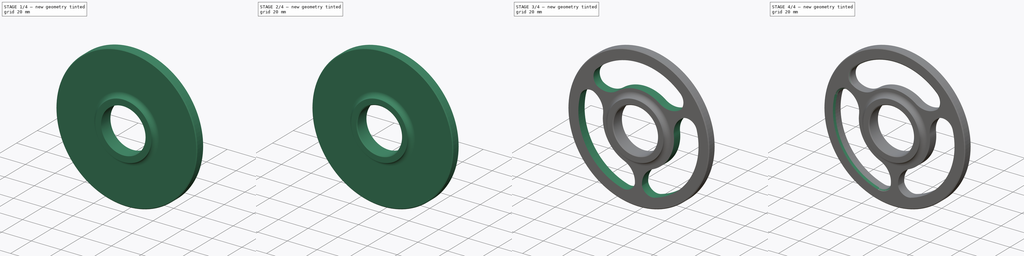
[diagram: build sequence overview — one tinted view per stage of 4, left to right]
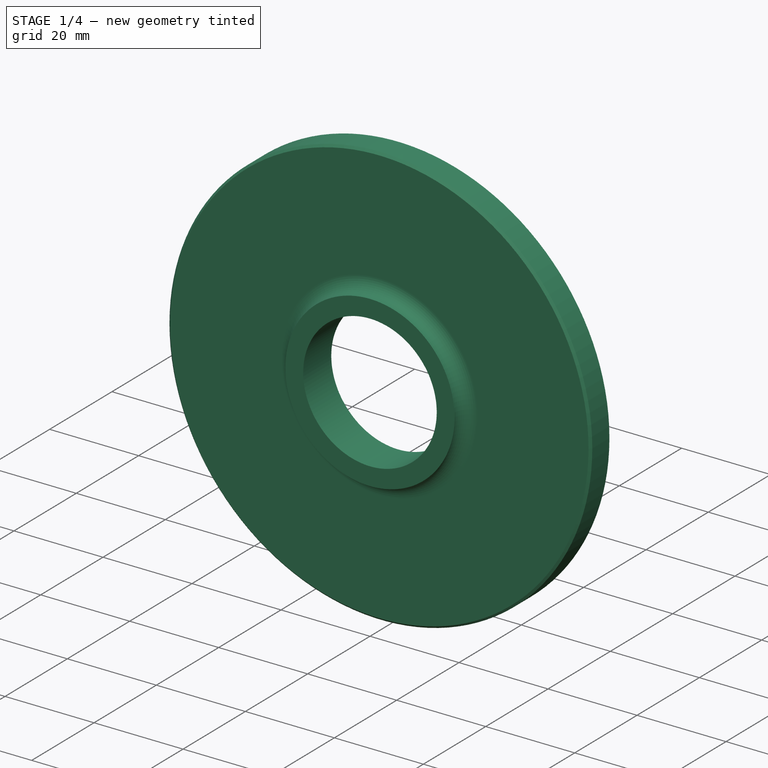
[diagram: stage 1 of 4 — iso view after this stage's code; geometry added in this stage tinted green]
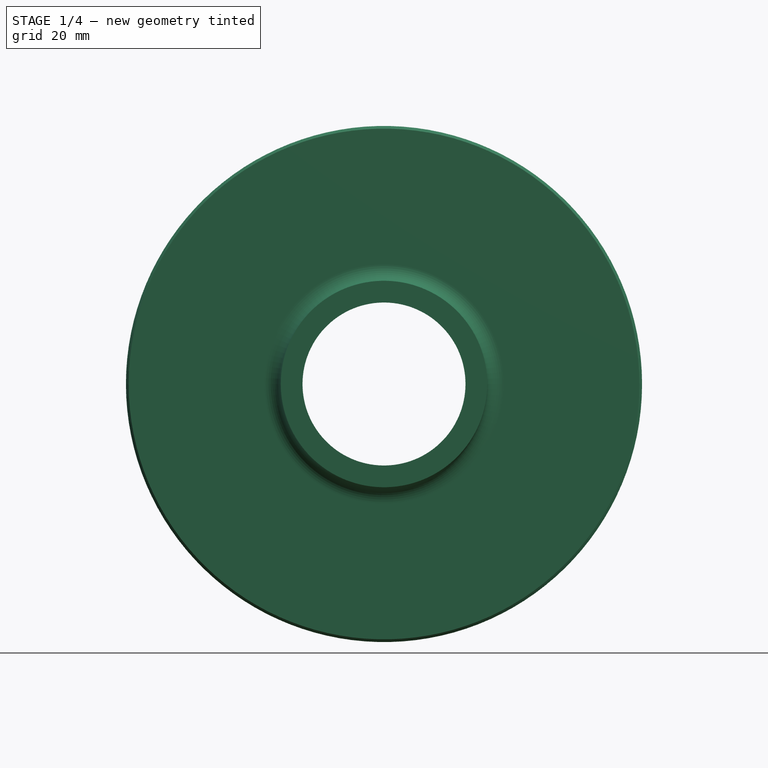
[diagram: stage 1 of 4 — front view after this stage's code; geometry added in this stage tinted green]
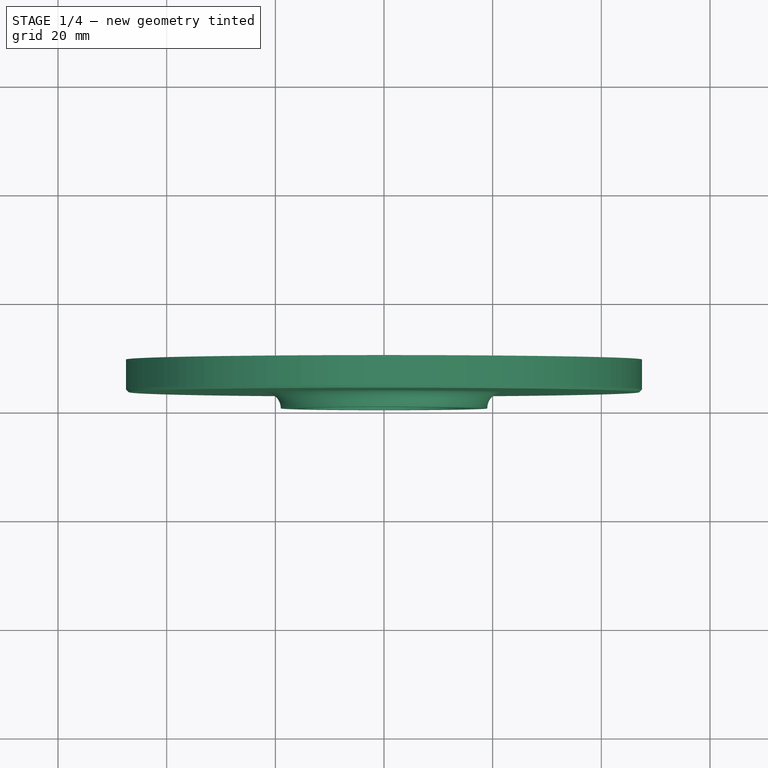
[diagram: stage 1 of 4 — top view after this stage's code; geometry added in this stage tinted green]
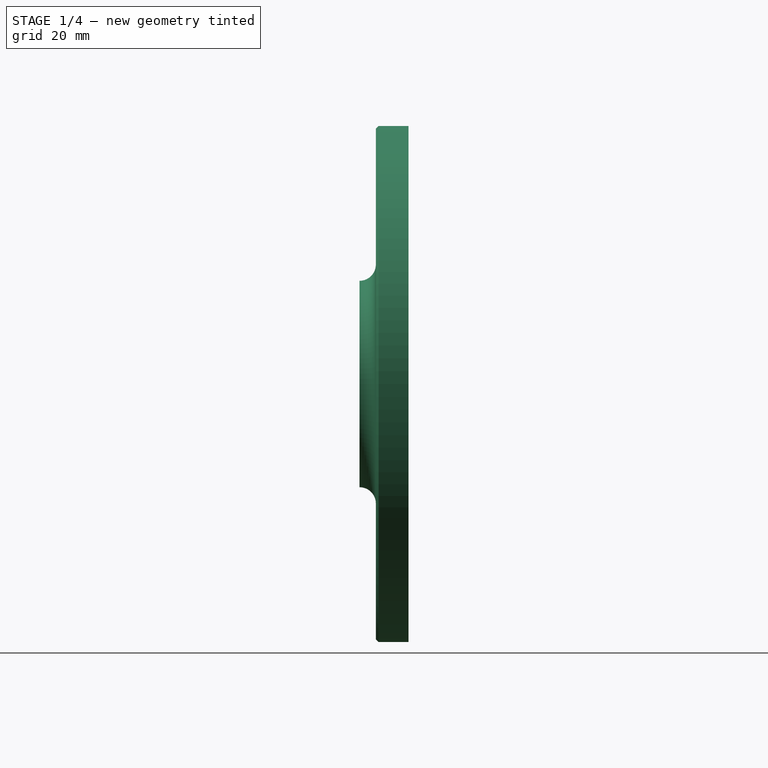
[diagram: stage 1 of 4 — right view after this stage's code; geometry added in this stage tinted green]
FCSTD DOCUMENT  (FreeCAD 0.18R4 (GitTag))
Label: Flywheel
License: All rights reserved
LicenseURL: http://en.wikipedia.org/wiki/All_rights_reserved
objects: PartDesign::Chamfer×5, Sketcher::SketchObject×2, PartDesign::Revolution×1, PartDesign::Pocket×1, PartDesign::PolarPattern×1, PartDesign::Fillet×1, PartDesign::Body×1
note: 14 computed .brp shape members not serialized (recipe doc carries the construction recipe); baked Part::Feature solids carry a one-line shape summary decoded from their .brp

FEATURE [Sketcher::SketchObject] Sketch
  MapMode = 5
  Support = -> [XY_Plane]
  sketch-geometry (6):
    g0: LineSegment StartX=-15 StartY=9 StartZ=0 EndX=-47.5 EndY=9 EndZ=0
    g1: LineSegment StartX=-47.5 StartY=9 StartZ=0 EndX=-47.5 EndY=3 EndZ=0
    g2: LineSegment StartX=-47.5 StartY=3 StartZ=0 EndX=-22 EndY=3 EndZ=0
    g3: LineSegment StartX=-19 StartY=0 StartZ=0 EndX=-15 EndY=0 EndZ=0
    g4: LineSegment StartX=-15 StartY=0 StartZ=0 EndX=-15 EndY=9 EndZ=0
    g5: ArcOfCircle CenterX=-22 CenterY=0 CenterZ=0 NormalX=0 NormalY=0 NormalZ=1 AngleXU=0 Radius=3 StartAngle=0 EndAngle=1.5708
  constraints (18):
    c: Horizontal(g0)
    c: Coincident(g0,g1)
    c: Vertical(g1)
    c: Coincident(g1,g2)
    c: Horizontal(g2)
    c: Horizontal(g3)
    c: Coincident(g3,g4)
    c: Coincident(g4,g0)
    c: Vertical(g4)
    c: Distance(g1) = 6
    c: DistanceX(g0,g-1) = 15
    c: DistanceX(g0,g-1) = 47.5
    c: Distance(g3) = 4
    c: Horizontal(g5,g5)
    c: Tangent(g5,g2) = 1.5708
    c: Coincident(g5,g3)
    c: Radius(g5) = 3
    c: PointOnObject(g3,g-1)
FEATURE [PartDesign::Revolution] Revolution
  Angle = 360
  Axis = (0,1,0)
  Base = (0,0,0)
  Profile = -> Sketch
  ReferenceAxis = -> Sketch [V_Axis]
FEATURE [PartDesign::Chamfer] Chamfer
  Base = -> Revolution [Edge6]
  BaseFeature = -> Revolution
  Size = 0.5
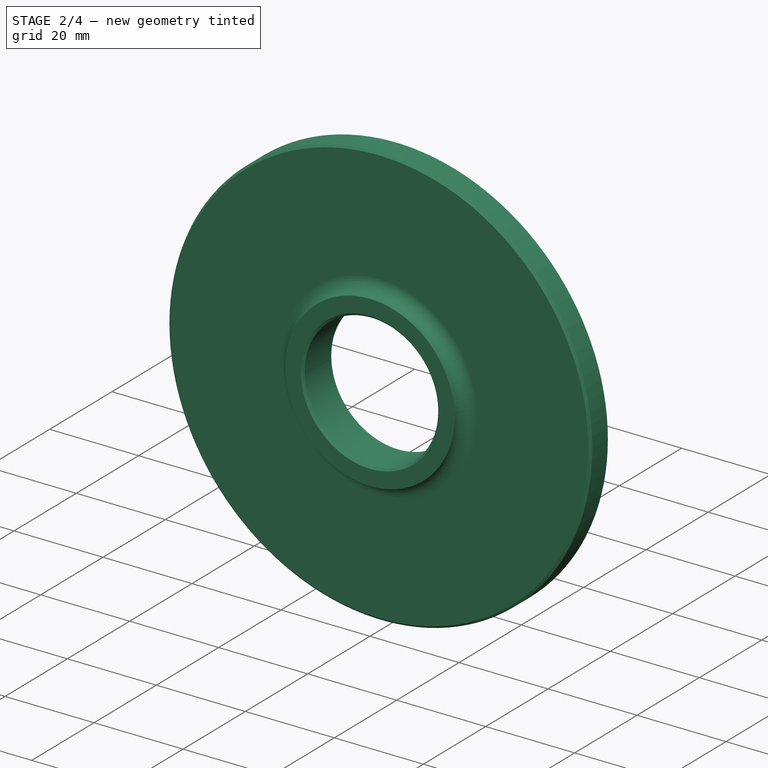
[diagram: stage 2 of 4 — iso view after this stage's code; geometry added in this stage tinted green]
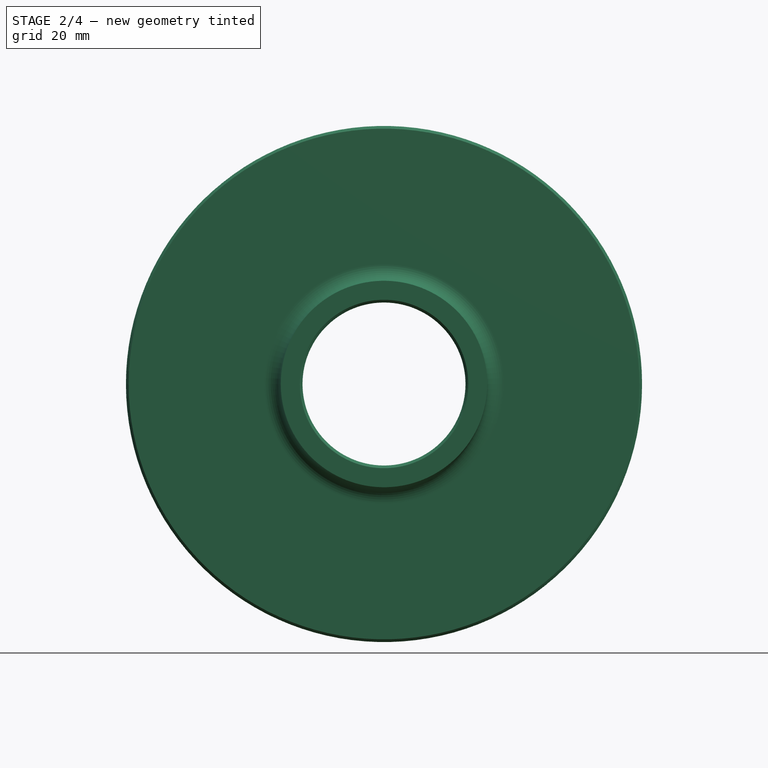
[diagram: stage 2 of 4 — front view after this stage's code; geometry added in this stage tinted green]
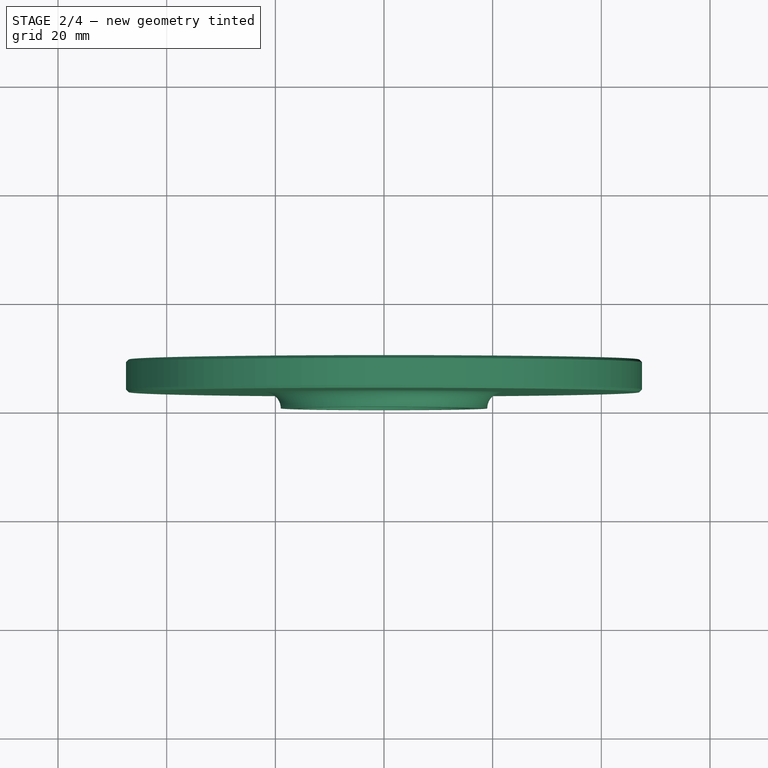
[diagram: stage 2 of 4 — top view after this stage's code; geometry added in this stage tinted green]
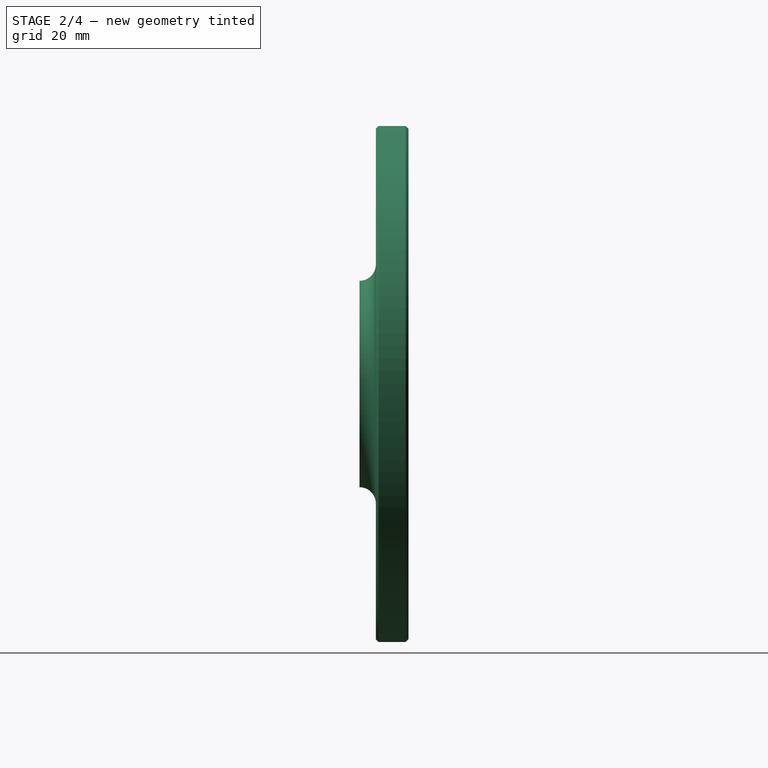
[diagram: stage 2 of 4 — right view after this stage's code; geometry added in this stage tinted green]
FEATURE [PartDesign::Chamfer] Chamfer001
  Base = -> Chamfer [Edge3]
  BaseFeature = -> Chamfer
  Size = 0.5
FEATURE [PartDesign::Chamfer] Chamfer002
  Base = -> Chamfer001 [Edge10]
  BaseFeature = -> Chamfer001
  Size = 0.5
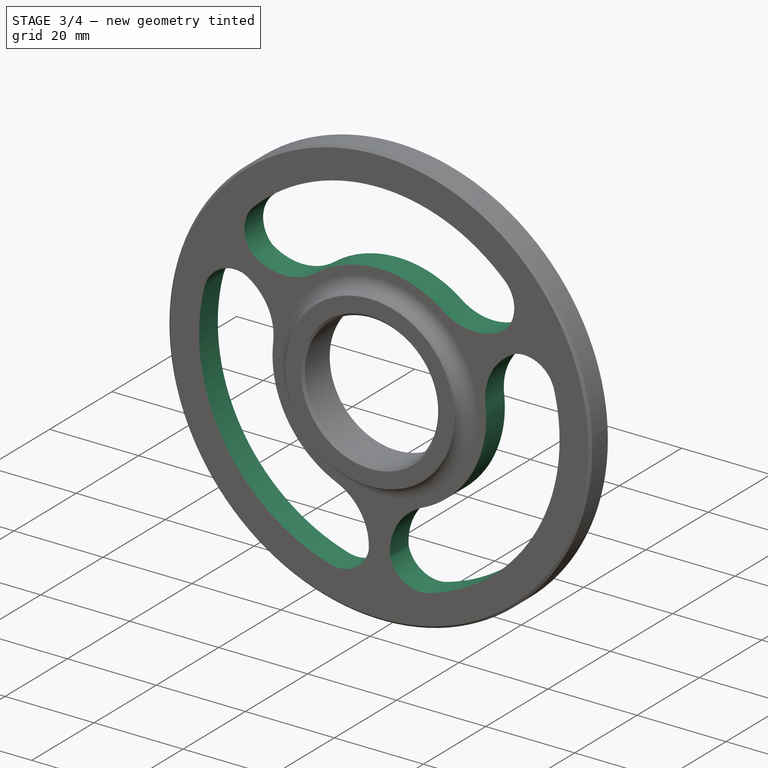
[diagram: stage 3 of 4 — iso view after this stage's code; geometry added in this stage tinted green]
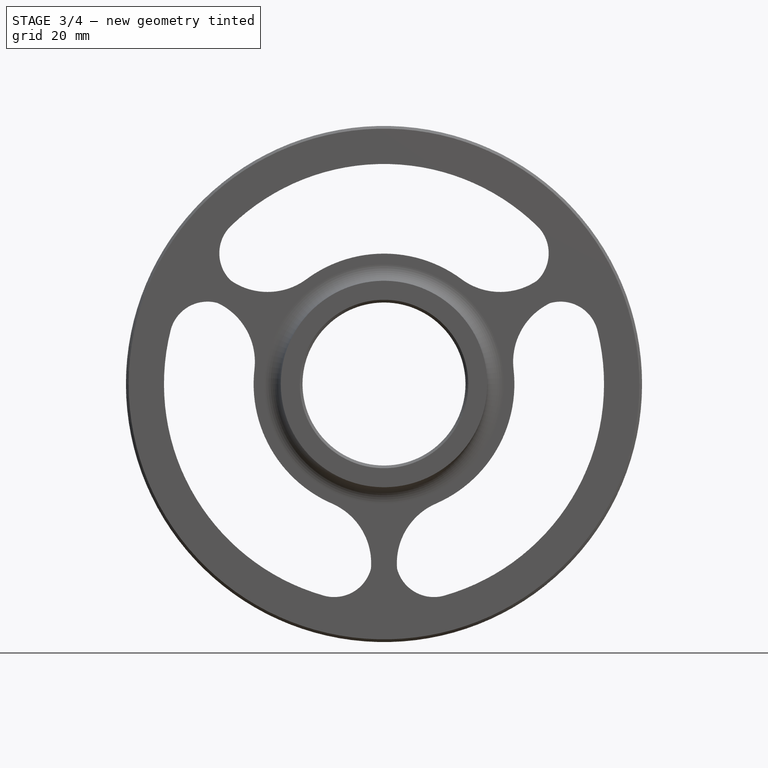
[diagram: stage 3 of 4 — front view after this stage's code; geometry added in this stage tinted green]
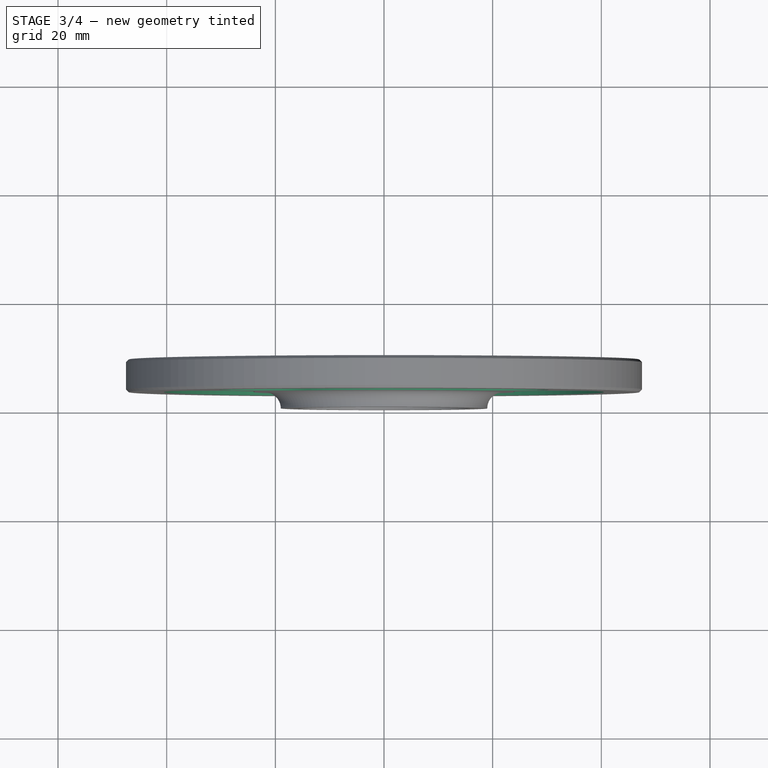
[diagram: stage 3 of 4 — top view after this stage's code; geometry added in this stage tinted green]
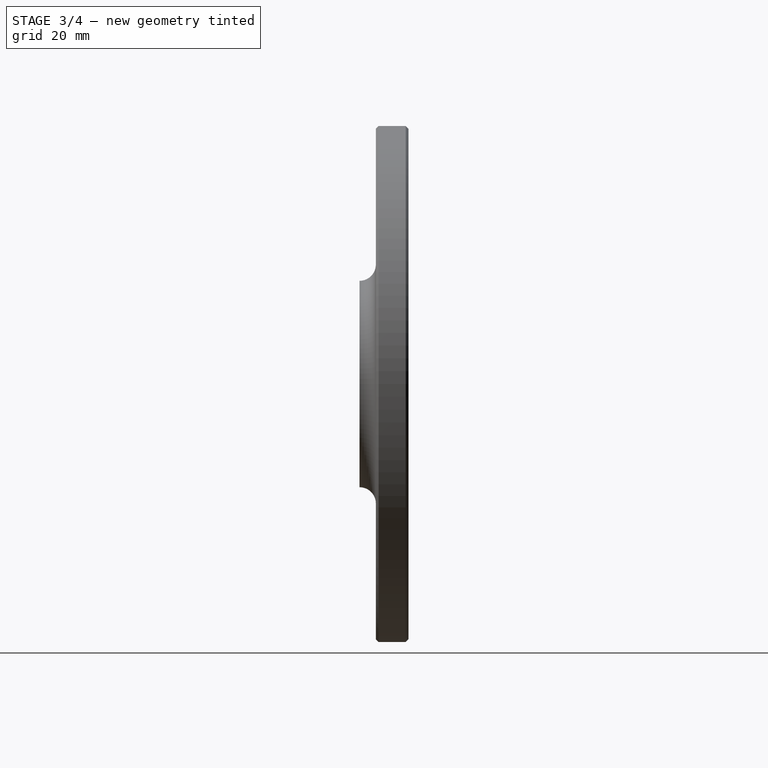
[diagram: stage 3 of 4 — right view after this stage's code; geometry added in this stage tinted green]
FEATURE [PartDesign::Chamfer] Chamfer003
  Base = -> Chamfer002 [Edge3]
  BaseFeature = -> Chamfer002
  Size = 0.5
FEATURE [Sketcher::SketchObject] Sketch001
  MapMode = 5
  Placement = pos=(0,3,0) rot=(1,0,0;1.5708rad)
  Support = -> [Chamfer003]
  sketch-geometry (6):
    g0: ArcOfCircle CenterX=0 CenterY=0 CenterZ=0 NormalX=0 NormalY=0 NormalZ=1 AngleXU=0 Radius=40.5 StartAngle=0.801173 EndAngle=2.34042
    g1: ArcOfCircle CenterX=-23.3115 CenterY=24.0588 CenterZ=0 NormalX=0 NormalY=0 NormalZ=1 AngleXU=0 Radius=7 StartAngle=2.34042 EndAngle=3.93864
    g2: ArcOfCircle CenterX=0 CenterY=0 CenterZ=0 NormalX=0 NormalY=0 NormalZ=1 AngleXU=0 Radius=24 StartAngle=0.93393 EndAngle=2.20766
    g3: ArcOfCircle CenterX=23.3115 CenterY=24.0588 CenterZ=0 NormalX=0 NormalY=0 NormalZ=1 AngleXU=0 Radius=7 StartAngle=5.48614 EndAngle=7.08436
    g4: ArcOfCircle CenterX=-21.4084 CenterY=28.9427 CenterZ=0 NormalX=0 NormalY=0 NormalZ=1 AngleXU=0 Radius=12 StartAngle=4.11046 EndAngle=5.34926
    g5: ArcOfCircle CenterX=21.4084 CenterY=28.9427 CenterZ=0 NormalX=0 NormalY=0 NormalZ=1 AngleXU=0 Radius=12 StartAngle=4.07552 EndAngle=5.31432
  constraints (16):
    c: Radius(g0) = 40.5
    c: Coincident(g0,g-1)
    c: Radius(g1) = 7
    c: Tangent(g1,g0) = -1.5708
    c: Radius(g2) = 24
    c: Coincident(g2,g0)
    c: Symmetric(g1,g3,g-2)
    c: Radius(g5) = 12
    c: Coincident(g5,g3)
    c: Tangent(g3,g0) = -1.5708
    c: Tangent(g4,g2) = 1.5708
    c: Coincident(g1,g4)
    c: Tangent(g5,g2) = 1.5708
    c: Symmetric(g1,g3,g-2)
    c: Symmetric(g0,g0,g-2)
    c: Symmetric(g2,g2,g-2)
FEATURE [PartDesign::Pocket] Pocket
  BaseFeature = -> Chamfer003
  Length = 5
  Length2 = 100
  Profile = -> Sketch001
  Type = 1
FEATURE [PartDesign::PolarPattern] PolarPattern
  Angle = 360
  Axis = -> Sketch001 [N_Axis]
  BaseFeature = -> Pocket
  Occurrences = 3
  Originals = -> [Pocket]
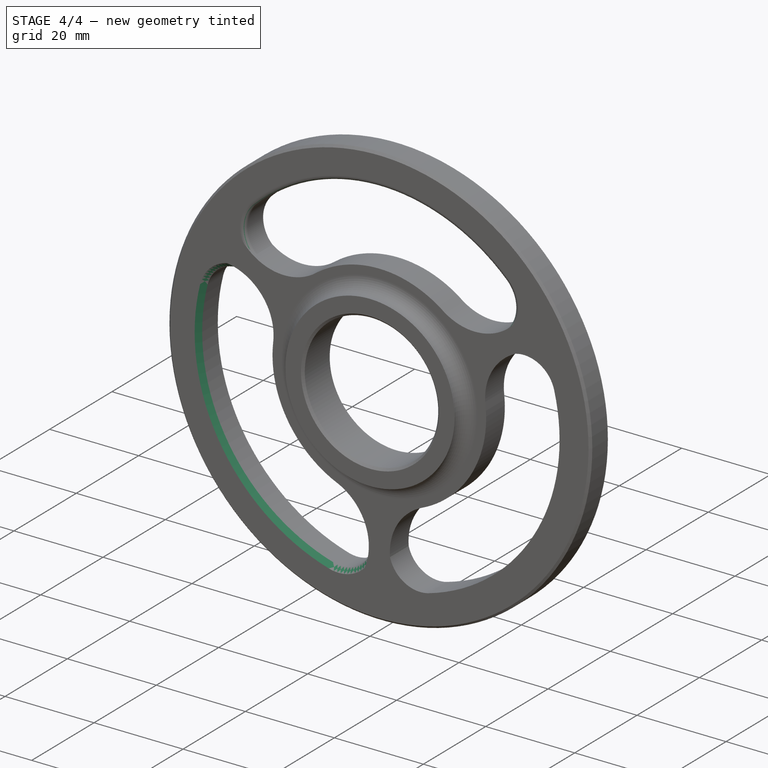
[diagram: stage 4 of 4 — iso view after this stage's code; geometry added in this stage tinted green]
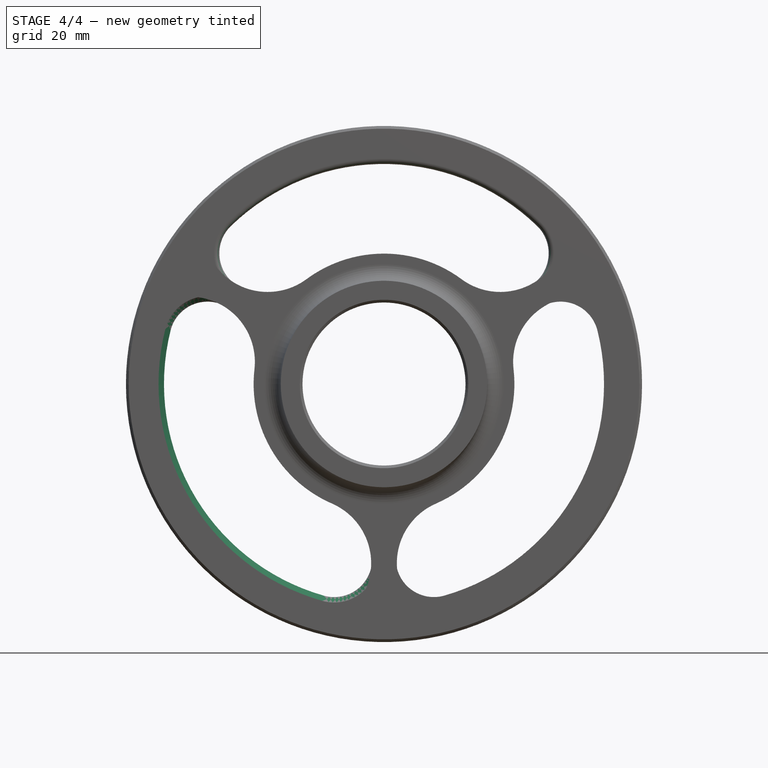
[diagram: stage 4 of 4 — front view after this stage's code; geometry added in this stage tinted green]
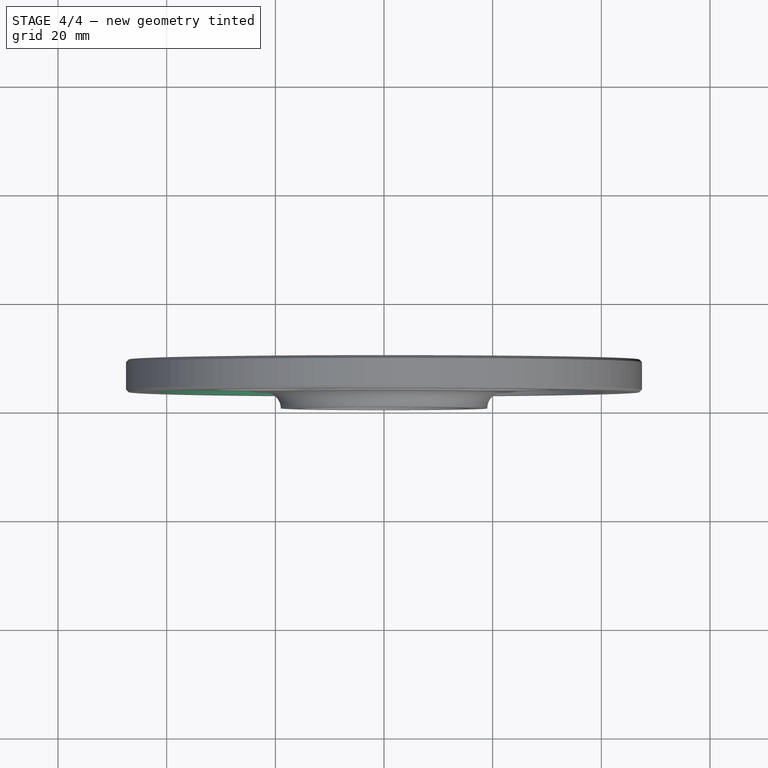
[diagram: stage 4 of 4 — top view after this stage's code; geometry added in this stage tinted green]
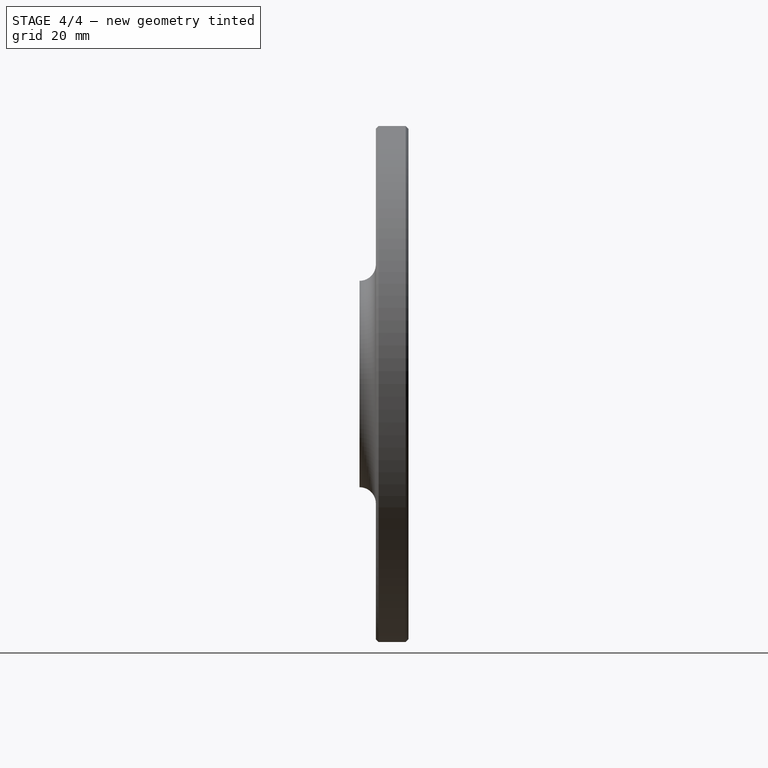
[diagram: stage 4 of 4 — right view after this stage's code; geometry added in this stage tinted green]
FEATURE [PartDesign::Chamfer] Chamfer004
  Base = -> PolarPattern [Edge39]
  BaseFeature = -> PolarPattern
  Size = 1
FEATURE [PartDesign::Fillet] Fillet
  Base = -> Chamfer004 [Edge47]
  BaseFeature = -> Chamfer004
  Radius = 1
FEATURE [PartDesign::Body] Body
  Group = -> [Sketch,Revolution,Chamfer,Chamfer001,Chamfer002,Chamfer003,Sketch001,Pocket,PolarPattern,Chamfer004,Fillet]
  Origin = -> Origin
  Tip = -> Fillet
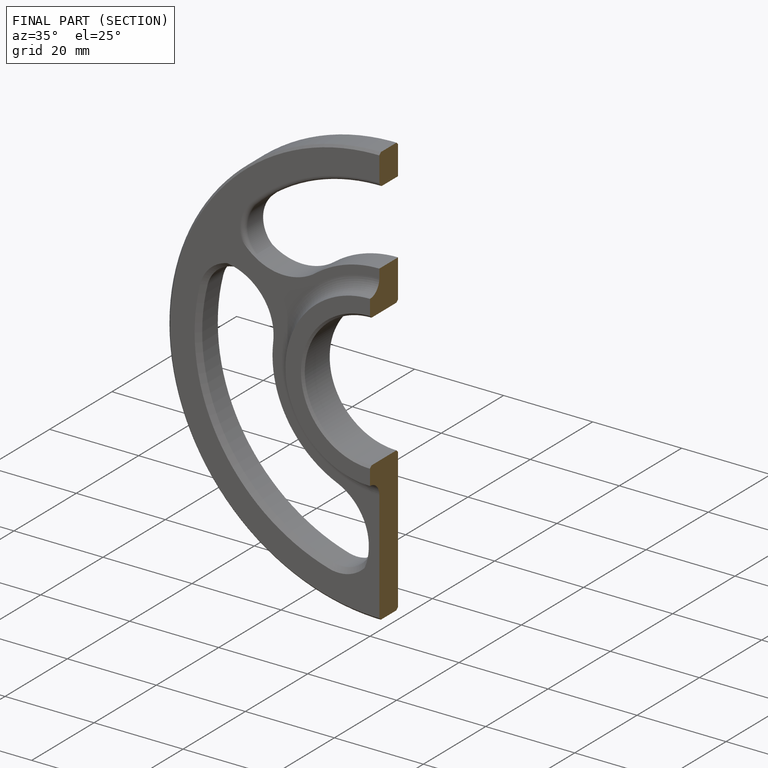
[diagram: finished part — half-section view (interior)]
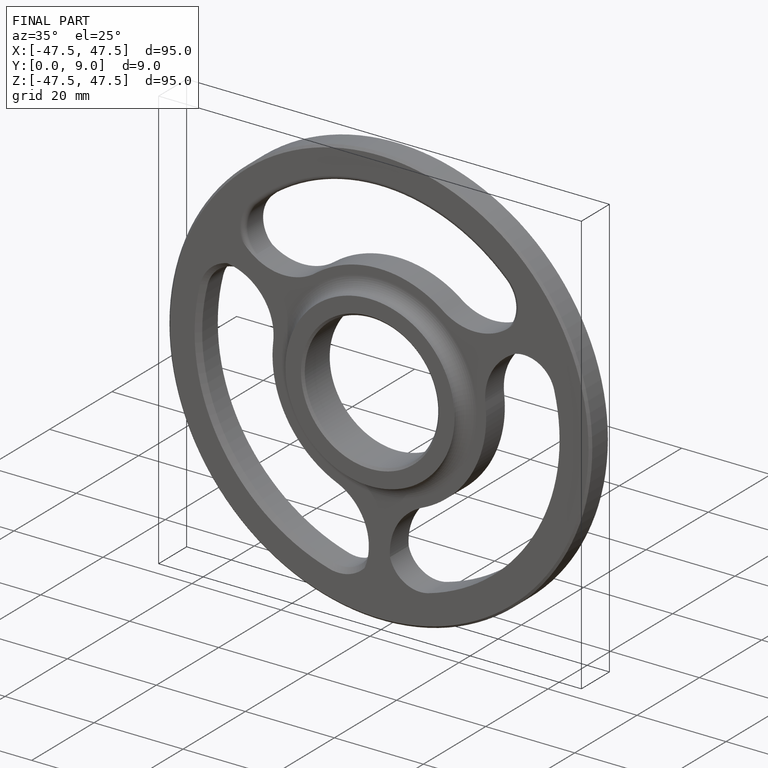
[diagram: finished part — iso view with bounding-box wireframe]
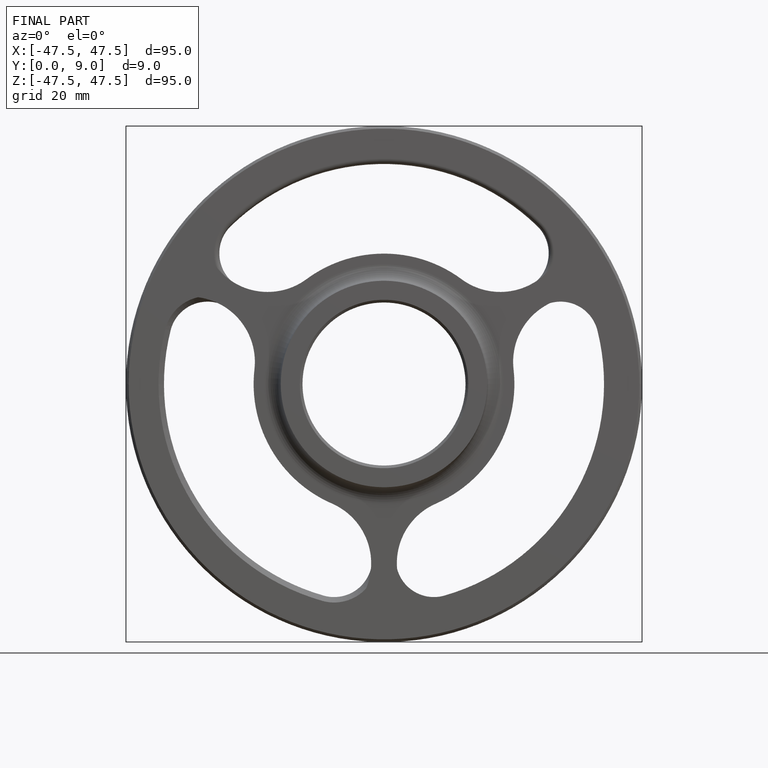
[diagram: finished part — front view with bounding-box wireframe]
